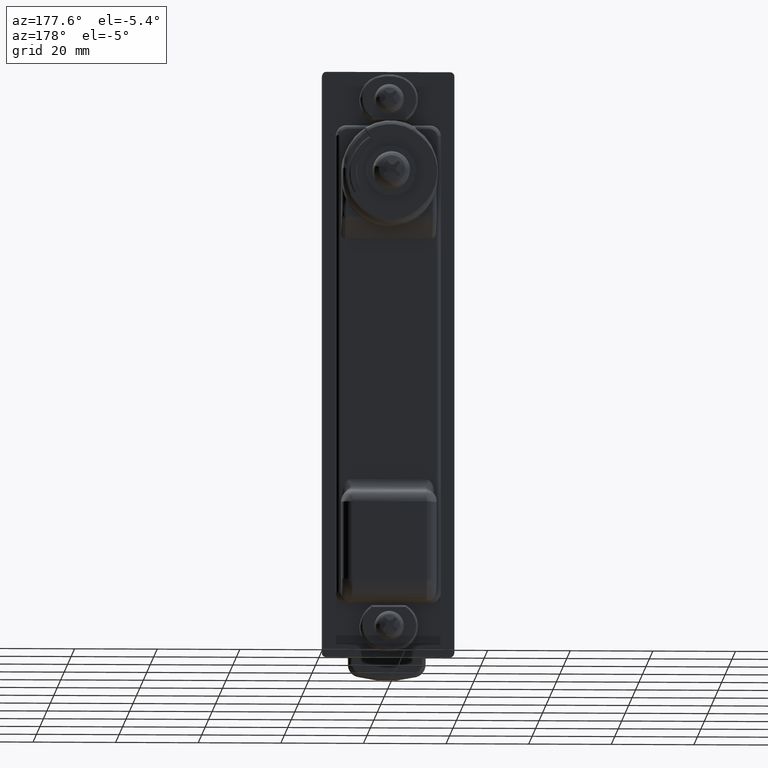
[diagram: clean part render]
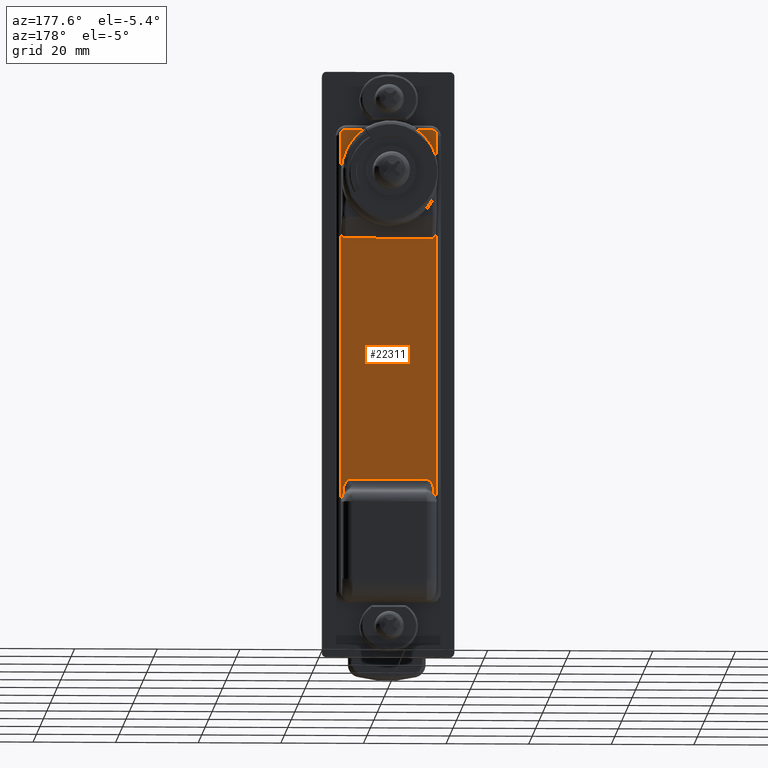
[diagram: same view with one face highlighted and labeled with its STEP entity id]
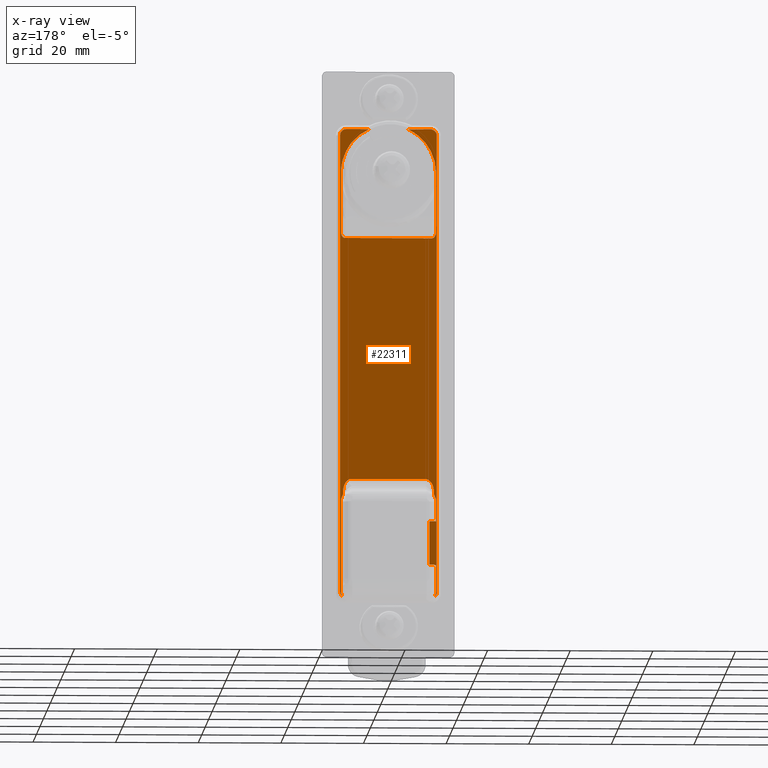
[diagram: x-ray of the same camera — body ghosted, the highlighted face saturated]
A machine part, auxiliary view. The second image highlights one B-rep face of the part: STEP entity #22311.
The next image is the same camera in x-ray: the body ghosted, the highlighted face saturated — about 0% of this face is hidden behind the body in this view.
In plain terms, the highlighted face is a freeform B-spline surface patch.
Its self-contained STEP definition (entity closure, byte-faithful):
#15788=CARTESIAN_POINT('',(-15.500000000000000,11.500000000000000,-94.299999999994498));
#15789=VERTEX_POINT('',#15788);
#15795=CARTESIAN_POINT('',(-15.500000000000000,9.900000000000000,-94.299999999994498));
#15796=VERTEX_POINT('',#15795);
#15797=CARTESIAN_POINT('',(-15.500000000000000,11.500000000000000,-94.299999999994498));
#15798=CARTESIAN_POINT('',(-15.500000000000000,9.900000000000000,-94.299999999994498));
#15799=QUASI_UNIFORM_CURVE('',1,(#15797,#15798),.UNSPECIFIED.,.F.,.U.);
#15800=EDGE_CURVE('',#15789,#15796,#15799,.T.);
#15815=CARTESIAN_POINT('',(-15.500000000000000,11.500000000000000,-83.699999999994503));
#15816=VERTEX_POINT('',#15815);
#15817=CARTESIAN_POINT('',(-15.500000000000000,9.900000000000000,-83.699999999994503));
#15818=VERTEX_POINT('',#15817);
#15819=CARTESIAN_POINT('',(-15.500000000000000,11.500000000000000,-83.699999999994503));
#15820=CARTESIAN_POINT('',(-15.500000000000000,9.900000000000000,-83.699999999994503));
#15821=QUASI_UNIFORM_CURVE('',1,(#15819,#15820),.UNSPECIFIED.,.F.,.U.);
#15822=EDGE_CURVE('',#15816,#15818,#15821,.T.);
#15922=CARTESIAN_POINT('',(-15.500000000000000,-11.500000000000000,-78.999999999988916));
#15923=VERTEX_POINT('',#15922);
#15924=CARTESIAN_POINT('',(-15.500000000000000,-9.0,-73.499999999988901));
#15925=VERTEX_POINT('',#15924);
#15926=CARTESIAN_POINT('',(-15.500000000000000,-11.500000000000069,-78.999999999988859));
#15927=CARTESIAN_POINT('',(-15.500000000000000,-11.531813138044081,-78.498551348026268));
#15928=CARTESIAN_POINT('',(-15.500000000000000,-11.367441302060129,-78.019373704553360));
#15929=CARTESIAN_POINT('',(-15.500000000000000,-11.285240492449059,-77.779741470688265));
#15930=CARTESIAN_POINT('',(-15.500000000000000,-11.156624306910111,-77.558989708094273));
#15931=CARTESIAN_POINT('',(-15.500000000000000,-11.059379433884130,-77.392082432514755));
#15932=CARTESIAN_POINT('',(-15.500000000000000,-11.041372270853000,-77.324689073114556));
#15933=CARTESIAN_POINT('',(-15.500000000000000,-11.010498520215069,-77.209141400828372));
#15934=CARTESIAN_POINT('',(-15.500000000000000,-11.002650802735991,-76.997349197253357));
#15935=CARTESIAN_POINT('',(-15.500000000000000,-11.000583342972050,-76.941553118929960));
#15936=CARTESIAN_POINT('',(-15.500000000000000,-10.996173553617041,-76.661810337848863));
#15937=CARTESIAN_POINT('',(-15.500000000000000,-10.990498792218030,-76.301821819639954));
#15938=CARTESIAN_POINT('',(-15.500000000000000,-10.966469052324120,-76.056971084177761));
#15939=CARTESIAN_POINT('',(-15.500000000000000,-10.904473178847130,-75.425264903293552));
#15940=CARTESIAN_POINT('',(-15.500000000000000,-10.693119508847991,-74.912447919009765));
#15941=CARTESIAN_POINT('',(-15.500000000000000,-10.444635179452041,-74.309539133734859));
#15942=CARTESIAN_POINT('',(-15.500000000000000,-10.007737549367009,-73.921866786417155));
#15943=CARTESIAN_POINT('',(-15.500000000000000,-9.532689691597041,-73.500342599906659));
#15944=CARTESIAN_POINT('',(-15.500000000000000,-9.000000000000007,-73.499999999988859));
#15945=B_SPLINE_CURVE_WITH_KNOTS('',2,(#15926,#15927,#15928,#15929,#15930,#15931,#15932,#15933,#15934,#15935,#15936,#15937,#15938,#15939,#15940,#15941,#15942,#15943,#15944),.UNSPECIFIED.,.F.,.U.,(3,2,2,2,2,2,2,2,2,3),(0.0,0.250000000000000,0.375000000000000,0.437500000000000,0.500000000000000,0.550000000000000,0.625000000000000,0.750000000000000,0.875000000000000,1.0),.UNSPECIFIED.);
#15946=EDGE_CURVE('',#15923,#15925,#15945,.T.);
#16010=CARTESIAN_POINT('',(-15.500000000000000,9.0,-73.499999999988901));
#16011=VERTEX_POINT('',#16010);
#16025=CARTESIAN_POINT('',(-15.500000000000000,-9.0,-73.499999999988901));
#16026=CARTESIAN_POINT('',(-15.500000000000000,9.0,-73.499999999988901));
#16027=QUASI_UNIFORM_CURVE('',1,(#16025,#16026),.UNSPECIFIED.,.F.,.U.);
#16028=EDGE_CURVE('',#15925,#16011,#16027,.T.);
#16095=CARTESIAN_POINT('',(-15.500000000000000,11.500000000000000,-78.999999999988916));
#16096=VERTEX_POINT('',#16095);
#16125=CARTESIAN_POINT('',(-15.500000000000000,9.000000000000007,-73.499999999988859));
#16126=CARTESIAN_POINT('',(-15.500000000000000,9.531924072717967,-73.500342107498057));
#16127=CARTESIAN_POINT('',(-15.500000000000000,10.007737549367009,-73.921866786416359));
#16128=CARTESIAN_POINT('',(-15.500000000000000,10.443583711161050,-74.307984293431559));
#16129=CARTESIAN_POINT('',(-15.500000000000000,10.693119508847991,-74.912447919009765));
#16130=CARTESIAN_POINT('',(-15.500000000000000,10.904089415749940,-75.423491368472355));
#16131=CARTESIAN_POINT('',(-15.500000000000000,10.966469052323900,-76.056971084177761));
#16132=CARTESIAN_POINT('',(-15.500000000000000,10.989918241252949,-76.295103050837966));
#16133=CARTESIAN_POINT('',(-15.500000000000000,10.995742671887960,-76.635548628532149));
#16134=CARTESIAN_POINT('',(-15.500000000000000,11.001308449335999,-76.960875589731671));
#16135=CARTESIAN_POINT('',(-15.500000000000000,11.002650802734991,-76.997349197253357));
#16136=CARTESIAN_POINT('',(-15.500000000000000,11.010393350718960,-77.207724986953664));
#16137=CARTESIAN_POINT('',(-15.500000000000000,11.041372270851999,-77.324689073114556));
#16138=CARTESIAN_POINT('',(-15.500000000000000,11.059195091780991,-77.391980959139161));
#16139=CARTESIAN_POINT('',(-15.500000000000000,11.156624306909890,-77.558989708094273));
#16140=CARTESIAN_POINT('',(-15.500000000000000,11.284720165334990,-77.778565828395671));
#16141=CARTESIAN_POINT('',(-15.500000000000000,11.367441302059911,-78.019373704553360));
#16142=CARTESIAN_POINT('',(-15.500000000000000,11.531849447491970,-78.497979027107775));
#16143=CARTESIAN_POINT('',(-15.500000000000000,11.499999999999950,-78.999999999988859));
#16144=B_SPLINE_CURVE_WITH_KNOTS('',2,(#16125,#16126,#16127,#16128,#16129,#16130,#16131,#16132,#16133,#16134,#16135,#16136,#16137,#16138,#16139,#16140,#16141,#16142,#16143),.UNSPECIFIED.,.F.,.U.,(3,2,2,2,2,2,2,2,2,3),(0.0,0.125000000000000,0.250000000000000,0.375000000000000,0.446428571428572,0.500000000000000,0.562500000000000,0.625000000000000,0.750000000000000,1.0),.UNSPECIFIED.);
#16145=EDGE_CURVE('',#16011,#16096,#16144,.T.);
#16734=CARTESIAN_POINT('',(-15.500000000000000,10.199999999999999,11.499999999996341));
#16735=VERTEX_POINT('',#16734);
#16758=CARTESIAN_POINT('',(-15.500000000000000,4.690415759816050,11.499999999996341));
#16759=VERTEX_POINT('',#16758);
#16773=CARTESIAN_POINT('',(-15.500000000000000,10.199999999999999,11.499999999996341));
#16774=CARTESIAN_POINT('',(-15.500000000000000,4.690415759816050,11.499999999996341));
#16775=QUASI_UNIFORM_CURVE('',1,(#16773,#16774),.UNSPECIFIED.,.F.,.U.);
#16776=EDGE_CURVE('',#16735,#16759,#16775,.T.);
#16871=CARTESIAN_POINT('',(-15.500000000000000,11.699999999999999,9.999999999996341));
#16872=VERTEX_POINT('',#16871);
#16902=CARTESIAN_POINT('',(-15.500000000000000,11.699999999999999,9.999999999996341));
#16903=CARTESIAN_POINT('',(-15.500000000000004,11.700000000000001,11.499999999996339));
#16904=CARTESIAN_POINT('',(-15.500000000000000,10.199999999999999,11.499999999996341));
#16912=(BOUNDED_CURVE()B_SPLINE_CURVE(2,(#16902,#16903,#16904),.UNSPECIFIED.,.F.,.U.)CURVE()GEOMETRIC_REPRESENTATION_ITEM()QUASI_UNIFORM_CURVE()RATIONAL_B_SPLINE_CURVE((1.0,0.707106781186548,1.0))REPRESENTATION_ITEM(''));
#16913=EDGE_CURVE('',#16872,#16735,#16912,.T.);
#16932=CARTESIAN_POINT('',(-15.500000000000000,11.699999999999999,-100.912635482373400));
#16933=VERTEX_POINT('',#16932);
#16955=CARTESIAN_POINT('',(-15.500000000000000,11.699999999999999,-100.912635482373400));
#16956=CARTESIAN_POINT('',(-15.500000000000000,11.699999999999999,9.999999999996341));
#16957=QUASI_UNIFORM_CURVE('',1,(#16955,#16956),.UNSPECIFIED.,.F.,.U.);
#16958=EDGE_CURVE('',#16933,#16872,#16957,.T.);
#17123=CARTESIAN_POINT('',(-15.500000000000000,11.223735151423140,-102.009916683698610));
#17124=VERTEX_POINT('',#17123);
#17125=CARTESIAN_POINT('',(-15.500000000000000,11.223735151423220,-102.009916683698710));
#17126=CARTESIAN_POINT('',(-15.500000000000000,11.261015922291000,-101.975075400875100));
#17127=CARTESIAN_POINT('',(-15.500000000000000,11.296570551610500,-101.938294209033700));
#17128=CARTESIAN_POINT('',(-15.500000000000000,11.364147178540740,-101.860761708233500));
#17129=CARTESIAN_POINT('',(-15.500000000000000,11.396214430102560,-101.819890410671700));
#17130=CARTESIAN_POINT('',(-15.500000000000000,11.484886618820580,-101.694065756334890));
#17131=CARTESIAN_POINT('',(-15.500000000000000,11.534840677900080,-101.605105784455600));
#17132=CARTESIAN_POINT('',(-15.500000000000000,11.596085207611100,-101.464080749825500));
#17133=CARTESIAN_POINT('',(-15.500000000000000,11.614284633477130,-101.415509823932690));
#17134=CARTESIAN_POINT('',(-15.500000000000000,11.645394934714410,-101.317313174487400));
#17135=CARTESIAN_POINT('',(-15.500000000000000,11.658321007649910,-101.267767193137500));
#17136=CARTESIAN_POINT('',(-15.500000000000000,11.689421568286321,-101.117821963805700));
#17137=CARTESIAN_POINT('',(-15.500000000000000,11.700000000000010,-101.016129325055900));
#17138=CARTESIAN_POINT('',(-15.500000000000000,11.699999999999999,-100.912635482373400));
#17139=B_SPLINE_CURVE_WITH_KNOTS('',3,(#17125,#17126,#17127,#17128,#17129,#17130,#17131,#17132,#17133,#17134,#17135,#17136,#17137,#17138),.UNSPECIFIED.,.F.,.U.,(4,2,2,2,2,2,4),(0.0,0.125000000000003,0.250000000000006,0.500000000000015,0.625000000000003,0.749999999999991,1.0),.UNSPECIFIED.);
#17140=EDGE_CURVE('',#17124,#16933,#17139,.T.);
#17220=CARTESIAN_POINT('',(-15.500000000000000,-10.199999999999999,11.499999999996341));
#17221=VERTEX_POINT('',#17220);
#17252=CARTESIAN_POINT('',(-15.500000000000000,-11.699999999999999,9.999999999996341));
#17253=VERTEX_POINT('',#17252);
#17267=CARTESIAN_POINT('',(-15.500000000000000,-10.199999999999999,11.499999999996341));
#17268=CARTESIAN_POINT('',(-15.500000000000004,-11.700000000000001,11.499999999996339));
#17269=CARTESIAN_POINT('',(-15.500000000000000,-11.699999999999999,9.999999999996341));
#17277=(BOUNDED_CURVE()B_SPLINE_CURVE(2,(#17267,#17268,#17269),.UNSPECIFIED.,.F.,.U.)CURVE()GEOMETRIC_REPRESENTATION_ITEM()QUASI_UNIFORM_CURVE()RATIONAL_B_SPLINE_CURVE((1.0,0.707106781186548,1.0))REPRESENTATION_ITEM(''));
#17278=EDGE_CURVE('',#17221,#17253,#17277,.T.);
#17299=CARTESIAN_POINT('',(-15.500000000000000,-11.699999999999999,-100.912635482373400));
#17300=VERTEX_POINT('',#17299);
#17314=CARTESIAN_POINT('',(-15.500000000000000,-11.699999999999999,9.999999999996341));
#17315=CARTESIAN_POINT('',(-15.500000000000000,-11.699999999999999,-100.912635482373400));
#17316=QUASI_UNIFORM_CURVE('',1,(#17314,#17315),.UNSPECIFIED.,.F.,.U.);
#17317=EDGE_CURVE('',#17253,#17300,#17316,.T.);
#17342=CARTESIAN_POINT('',(-15.500000000000000,-4.690415759816050,11.499999999996341));
#17343=VERTEX_POINT('',#17342);
#17365=CARTESIAN_POINT('',(-15.500000000000000,-4.690415759816050,11.499999999996341));
#17366=CARTESIAN_POINT('',(-15.500000000000000,-10.199999999999999,11.499999999996341));
#17367=QUASI_UNIFORM_CURVE('',1,(#17365,#17366),.UNSPECIFIED.,.F.,.U.);
#17368=EDGE_CURVE('',#17343,#17221,#17367,.T.);
#17481=CARTESIAN_POINT('',(-15.500000000000000,-11.223735151424520,-102.009916683699200));
#17482=VERTEX_POINT('',#17481);
#17500=CARTESIAN_POINT('',(-15.500000000000000,-11.699999999999999,-100.912635482373400));
#17501=CARTESIAN_POINT('',(-15.500000000000000,-11.700000000000021,-101.016028821536300));
#17502=CARTESIAN_POINT('',(-15.500000000000011,-11.689440836450281,-101.118245493582710));
#17503=CARTESIAN_POINT('',(-15.500000000000000,-11.657841663423021,-101.269814228351610));
#17504=CARTESIAN_POINT('',(-15.500000000000000,-11.644708517389081,-101.319714919333190));
#17505=CARTESIAN_POINT('',(-15.500000000000000,-11.613681226965330,-101.417169278014100));
#17506=CARTESIAN_POINT('',(-15.500000000000000,-11.577820831142221,-101.512634165912500));
#17507=CARTESIAN_POINT('',(-15.500000000000000,-11.532385519907370,-101.604157692536400));
#17508=CARTESIAN_POINT('',(-15.500000000000011,-11.482056752432991,-101.693666905916600));
#17509=CARTESIAN_POINT('',(-15.500000000000000,-11.454317642930260,-101.737548825282600));
#17510=CARTESIAN_POINT('',(-15.500000000000011,-11.365529913513400,-101.863213378174610));
#17511=CARTESIAN_POINT('',(-15.500000000000000,-11.298519068187000,-101.940026294257290));
#17512=CARTESIAN_POINT('',(-15.500000000000000,-11.223735151424520,-102.009916683699200));
#17513=B_SPLINE_CURVE_WITH_KNOTS('',3,(#17500,#17501,#17502,#17503,#17504,#17505,#17506,#17507,#17508,#17509,#17510,#17511,#17512),.UNSPECIFIED.,.F.,.U.,(4,2,2,1,2,2,4),(0.0,0.250000000000000,0.375000000000000,0.500000000000001,0.625000000000001,0.750000000000002,1.0),.UNSPECIFIED.);
#17514=EDGE_CURVE('',#17300,#17482,#17513,.T.);
#18370=CARTESIAN_POINT('',(-15.500000000000000,11.500000000000000,-100.866049788808400));
#18371=VERTEX_POINT('',#18370);
#18372=CARTESIAN_POINT('',(-15.500000000000000,11.500000000000000,-100.866049788808400));
#18373=CARTESIAN_POINT('',(-15.500000000000011,11.500000000000011,-101.065860759382500));
#18374=CARTESIAN_POINT('',(-15.500000000000011,11.476446639257601,-101.261661694120700));
#18375=CARTESIAN_POINT('',(-15.500000000000000,11.418594771143161,-101.501575939703700));
#18376=CARTESIAN_POINT('',(-15.500000000000000,11.405584840543950,-101.549313699589700));
#18377=CARTESIAN_POINT('',(-15.500000000000000,11.376634929852260,-101.644290368959900));
#18378=CARTESIAN_POINT('',(-15.500000000000000,11.360633747049340,-101.691686320323300));
#18379=CARTESIAN_POINT('',(-15.500000000000000,11.308624605720540,-101.831762699051400));
#18380=CARTESIAN_POINT('',(-15.500000000000000,11.268715161612761,-101.922244757129600));
#18381=CARTESIAN_POINT('',(-15.500000000000000,11.223735151423190,-102.009916683698610));
#18382=B_SPLINE_CURVE_WITH_KNOTS('',3,(#18372,#18373,#18374,#18375,#18376,#18377,#18378,#18379,#18380,#18381),.UNSPECIFIED.,.F.,.U.,(4,2,2,2,4),(0.0,0.500000000000034,0.625000000000025,0.750000000000016,1.0),.UNSPECIFIED.);
#18383=EDGE_CURVE('',#18371,#17124,#18382,.T.);
#18684=CARTESIAN_POINT('',(-15.500000000000000,-11.500000000000000,-100.866049788808400));
#18685=VERTEX_POINT('',#18684);
#18686=CARTESIAN_POINT('',(-15.500000000000000,-11.223735151424520,-102.009916683699200));
#18687=CARTESIAN_POINT('',(-15.500000000000011,-11.313821185486230,-101.834327213398690));
#18688=CARTESIAN_POINT('',(-15.500000000000000,-11.382566024375800,-101.649946751222700));
#18689=CARTESIAN_POINT('',(-15.500000000000011,-11.441168159720160,-101.408213685224200));
#18690=CARTESIAN_POINT('',(-15.500000000000000,-11.451478959458109,-101.359359384068600));
#18691=CARTESIAN_POINT('',(-15.500000000000000,-11.469094994867680,-101.261580429421800));
#18692=CARTESIAN_POINT('',(-15.500000000000000,-11.476433155643260,-101.212526915233100));
#18693=CARTESIAN_POINT('',(-15.500000000000011,-11.494067733869899,-101.064877572890200));
#18694=CARTESIAN_POINT('',(-15.500000000000000,-11.500000000000011,-100.965794702978300));
#18695=CARTESIAN_POINT('',(-15.500000000000000,-11.500000000000000,-100.866049788808400));
#18696=B_SPLINE_CURVE_WITH_KNOTS('',3,(#18686,#18687,#18688,#18689,#18690,#18691,#18692,#18693,#18694,#18695),.UNSPECIFIED.,.F.,.U.,(4,2,2,2,4),(0.0,0.499999999999982,0.624999999999978,0.749999999999973,1.0),.UNSPECIFIED.);
#18697=EDGE_CURVE('',#17482,#18685,#18696,.T.);
#18745=CARTESIAN_POINT('',(-15.500000000000000,11.500000000000000,-13.538268134083820));
#18746=VERTEX_POINT('',#18745);
#18747=CARTESIAN_POINT('',(-15.499999999998900,10.500000000000000,-14.952481696455980));
#18748=VERTEX_POINT('',#18747);
#18749=CARTESIAN_POINT('',(-15.500000000000000,11.500000000000000,-13.538268134083820));
#18750=CARTESIAN_POINT('',(-15.499999999999998,11.500000017457802,-14.124054529563924));
#18751=CARTESIAN_POINT('',(-15.500000000000000,11.207106796087711,-14.538268113010441));
#18752=CARTESIAN_POINT('',(-15.499999999999998,10.914213574717627,-14.952481696456969));
#18753=CARTESIAN_POINT('',(-15.499999999998900,10.500000000000000,-14.952481696455980));
#18761=(BOUNDED_CURVE()B_SPLINE_CURVE(2,(#18749,#18750,#18751,#18752,#18753),.UNSPECIFIED.,.F.,.U.)B_SPLINE_CURVE_WITH_KNOTS((3,2,3),(0.0,0.500000000000000,1.0),.UNSPECIFIED.)CURVE()GEOMETRIC_REPRESENTATION_ITEM()RATIONAL_B_SPLINE_CURVE((1.0,0.923879528479062,1.0,0.923879528479062,1.0))REPRESENTATION_ITEM(''));
#18762=EDGE_CURVE('',#18746,#18748,#18761,.T.);
#18940=CARTESIAN_POINT('',(-15.499999999998900,-10.500000000000000,-14.952481696455980));
#18941=VERTEX_POINT('',#18940);
#18948=CARTESIAN_POINT('',(-15.500000000000000,-11.500000000000000,-13.538268134083820));
#18949=VERTEX_POINT('',#18948);
#18955=CARTESIAN_POINT('',(-15.499999999998900,-10.500000000000000,-14.952481696455980));
#18956=CARTESIAN_POINT('',(-15.499999999999051,-10.914213745531306,-14.952482389456316));
#18957=CARTESIAN_POINT('',(-15.499999999999380,-11.207107036107280,-14.538268725595969));
#18958=CARTESIAN_POINT('',(-15.499999999999693,-11.500000326683237,-14.124055061735644));
#18959=CARTESIAN_POINT('',(-15.500000000000000,-11.500000000000000,-13.538268134083820));
#18967=(BOUNDED_CURVE()B_SPLINE_CURVE(2,(#18955,#18956,#18957,#18958,#18959),.UNSPECIFIED.,.F.,.U.)B_SPLINE_CURVE_WITH_KNOTS((3,2,3),(0.0,0.500000000000000,1.0),.UNSPECIFIED.)CURVE()GEOMETRIC_REPRESENTATION_ITEM()RATIONAL_B_SPLINE_CURVE((1.0,0.923879419330269,1.0,0.923879419330269,1.0))REPRESENTATION_ITEM(''));
#18968=EDGE_CURVE('',#18941,#18949,#18967,.T.);
#21123=CARTESIAN_POINT('',(-15.500000000000000,-11.500000000000000,-78.999999999988916));
#21124=CARTESIAN_POINT('',(-15.500000000000000,-11.500000000000000,-100.866049788808400));
#21125=QUASI_UNIFORM_CURVE('',1,(#21123,#21124),.UNSPECIFIED.,.F.,.U.);
#21126=EDGE_CURVE('',#15923,#18685,#21125,.T.);
#22046=CARTESIAN_POINT('',(-15.500000000000000,11.500000000000000,0.999999999993037));
#22047=VERTEX_POINT('',#22046);
#22053=CARTESIAN_POINT('',(-15.500000000000000,11.500000000000000,0.999999999993040));
#22054=CARTESIAN_POINT('',(-15.499999999999996,11.500000000000000,8.458116072573120));
#22055=CARTESIAN_POINT('',(-15.500000000000000,4.690415759816048,11.499999999996341));
#22063=(BOUNDED_CURVE()B_SPLINE_CURVE(2,(#22053,#22054,#22055),.UNSPECIFIED.,.F.,.U.)CURVE()GEOMETRIC_REPRESENTATION_ITEM()QUASI_UNIFORM_CURVE()RATIONAL_B_SPLINE_CURVE((1.0,0.839006030962830,1.0))REPRESENTATION_ITEM(''));
#22064=EDGE_CURVE('',#22047,#16759,#22063,.T.);
#22068=CARTESIAN_POINT('',(-15.500000000000000,-11.500000000000000,0.999999999993037));
#22069=VERTEX_POINT('',#22068);
#22070=CARTESIAN_POINT('',(-15.500000000000000,-4.690415759816046,11.499999999996341));
#22071=CARTESIAN_POINT('',(-15.500000000000000,-11.500000000000000,8.458116072573125));
#22072=CARTESIAN_POINT('',(-15.500000000000000,-11.500000000000000,0.999999999993040));
#22080=(BOUNDED_CURVE()B_SPLINE_CURVE(2,(#22070,#22071,#22072),.UNSPECIFIED.,.F.,.U.)CURVE()GEOMETRIC_REPRESENTATION_ITEM()QUASI_UNIFORM_CURVE()RATIONAL_B_SPLINE_CURVE((1.0,0.839006030962830,1.0))REPRESENTATION_ITEM(''));
#22081=EDGE_CURVE('',#17343,#22069,#22080,.T.);
#22183=CARTESIAN_POINT('',(-15.500000000000000,11.500000000000000,-13.538268134083820));
#22184=CARTESIAN_POINT('',(-15.500000000000000,11.500000000000000,0.999999999993037));
#22185=QUASI_UNIFORM_CURVE('',1,(#22183,#22184),.UNSPECIFIED.,.F.,.U.);
#22186=EDGE_CURVE('',#18746,#22047,#22185,.T.);
#22199=CARTESIAN_POINT('',(-15.500000000000000,-11.500000000000000,0.999999999993037));
#22200=CARTESIAN_POINT('',(-15.500000000000000,-11.500000000000000,-13.538268134083820));
#22201=QUASI_UNIFORM_CURVE('',1,(#22199,#22200),.UNSPECIFIED.,.F.,.U.);
#22202=EDGE_CURVE('',#22069,#18949,#22201,.T.);
#22262=CARTESIAN_POINT('',(-15.500000000000000,-12.868829734983811,-107.679738933145300));
#22263=CARTESIAN_POINT('',(-15.500000000000000,-12.868829734983811,17.169823264300181));
#22264=CARTESIAN_POINT('',(-15.500000000000000,12.868830571833010,-107.679738933145300));
#22265=CARTESIAN_POINT('',(-15.500000000000000,12.868830571833010,17.169823264300181));
#22266=B_SPLINE_SURFACE_WITH_KNOTS('',1,1,((#22262,#22264),(#22263,#22265)),.UNSPECIFIED.,.F.,.F.,.U.,(2,2),(2,2),(0.0,124.849562197445490),(0.0,25.737660306816821),.UNSPECIFIED.);
#22267=ORIENTED_EDGE('',*,*,#16958,.T.);
#22268=ORIENTED_EDGE('',*,*,#16913,.T.);
#22269=ORIENTED_EDGE('',*,*,#16776,.T.);
#22270=ORIENTED_EDGE('',*,*,#22064,.F.);
#22271=ORIENTED_EDGE('',*,*,#22186,.F.);
#22272=ORIENTED_EDGE('',*,*,#18762,.T.);
#22273=CARTESIAN_POINT('',(-15.499999999998900,10.500000000000000,-14.952481696455980));
#22274=CARTESIAN_POINT('',(-15.499999999998900,-10.500000000000000,-14.952481696455980));
#22275=QUASI_UNIFORM_CURVE('',1,(#22273,#22274),.UNSPECIFIED.,.F.,.U.);
#22276=EDGE_CURVE('',#18748,#18941,#22275,.T.);
#22277=ORIENTED_EDGE('',*,*,#22276,.T.);
#22278=ORIENTED_EDGE('',*,*,#18968,.T.);
#22279=ORIENTED_EDGE('',*,*,#22202,.F.);
#22280=ORIENTED_EDGE('',*,*,#22081,.F.);
#22281=ORIENTED_EDGE('',*,*,#17368,.T.);
#22282=ORIENTED_EDGE('',*,*,#17278,.T.);
#22283=ORIENTED_EDGE('',*,*,#17317,.T.);
#22284=ORIENTED_EDGE('',*,*,#17514,.T.);
#22285=ORIENTED_EDGE('',*,*,#18697,.T.);
#22286=ORIENTED_EDGE('',*,*,#21126,.F.);
#22287=ORIENTED_EDGE('',*,*,#15946,.T.);
#22288=ORIENTED_EDGE('',*,*,#16028,.T.);
#22289=ORIENTED_EDGE('',*,*,#16145,.T.);
#22290=CARTESIAN_POINT('',(-15.500000000000000,11.500000000000000,-83.699999999994503));
#22291=CARTESIAN_POINT('',(-15.500000000000000,11.500000000000000,-78.999999999988916));
#22292=QUASI_UNIFORM_CURVE('',1,(#22290,#22291),.UNSPECIFIED.,.F.,.U.);
#22293=EDGE_CURVE('',#15816,#16096,#22292,.T.);
#22294=ORIENTED_EDGE('',*,*,#22293,.F.);
#22295=ORIENTED_EDGE('',*,*,#15822,.T.);
#22296=CARTESIAN_POINT('',(-15.500000000000000,9.900000000000000,-94.299999999994498));
#22297=CARTESIAN_POINT('',(-15.500000000000000,9.900000000000000,-83.699999999994503));
#22298=QUASI_UNIFORM_CURVE('',1,(#22296,#22297),.UNSPECIFIED.,.F.,.U.);
#22299=EDGE_CURVE('',#15796,#15818,#22298,.T.);
#22300=ORIENTED_EDGE('',*,*,#22299,.F.);
#22301=ORIENTED_EDGE('',*,*,#15800,.F.);
#22302=CARTESIAN_POINT('',(-15.500000000000000,11.500000000000000,-100.866049788808400));
#22303=CARTESIAN_POINT('',(-15.500000000000000,11.500000000000000,-94.299999999994498));
#22304=QUASI_UNIFORM_CURVE('',1,(#22302,#22303),.UNSPECIFIED.,.F.,.U.);
#22305=EDGE_CURVE('',#18371,#15789,#22304,.T.);
#22306=ORIENTED_EDGE('',*,*,#22305,.F.);
#22307=ORIENTED_EDGE('',*,*,#18383,.T.);
#22308=ORIENTED_EDGE('',*,*,#17140,.T.);
#22309=EDGE_LOOP('',(#22267,#22268,#22269,#22270,#22271,#22272,#22277,#22278,#22279,#22280,#22281,#22282,#22283,#22284,#22285,#22286,#22287,#22288,#22289,#22294,#22295,#22300,#22301,#22306,#22307,#22308));
#22310=FACE_OUTER_BOUND('',#22309,.T.);
#22311=ADVANCED_FACE('',(#22310),#22266,.F.);